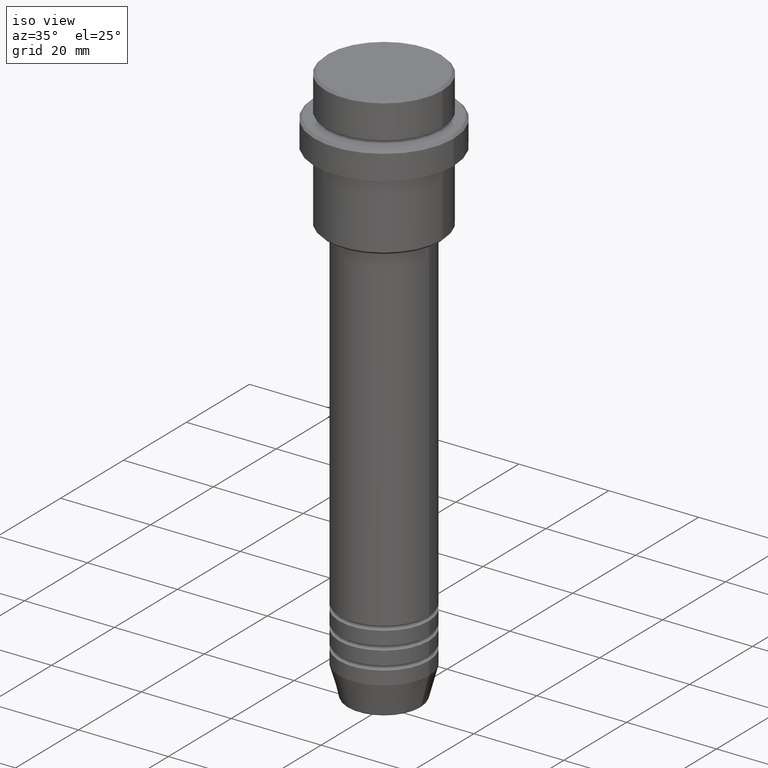
[diagram: clean part render]
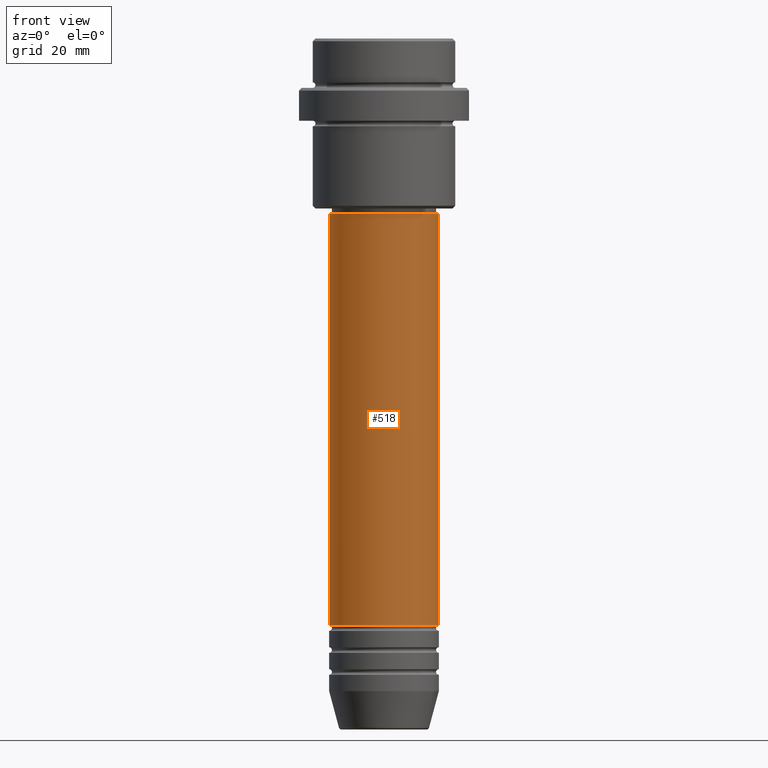
[diagram: tour spotlight — one face highlighted and labeled with its STEP entity id]
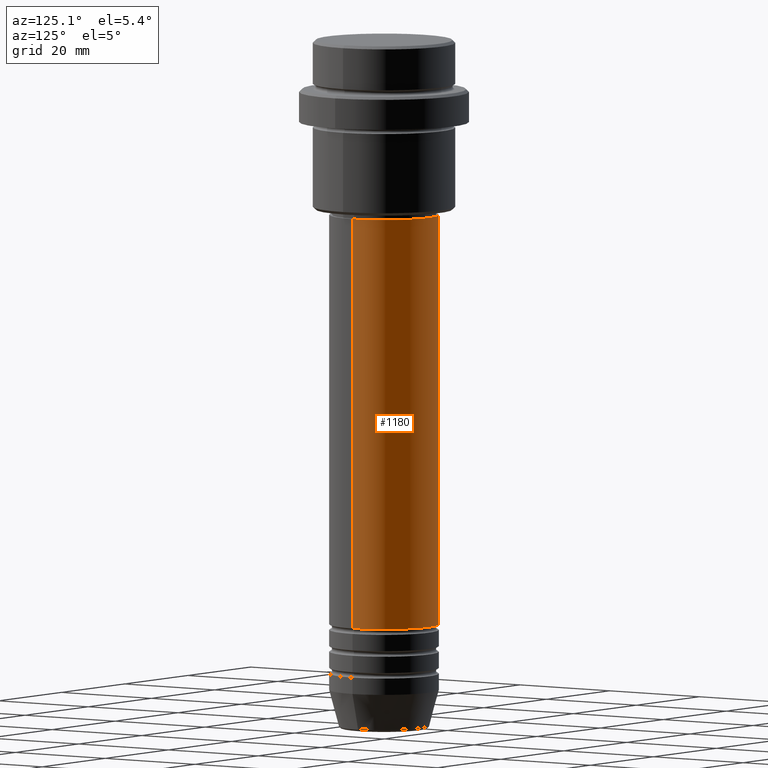
[diagram: tour spotlight — one face highlighted and labeled with its STEP entity id]
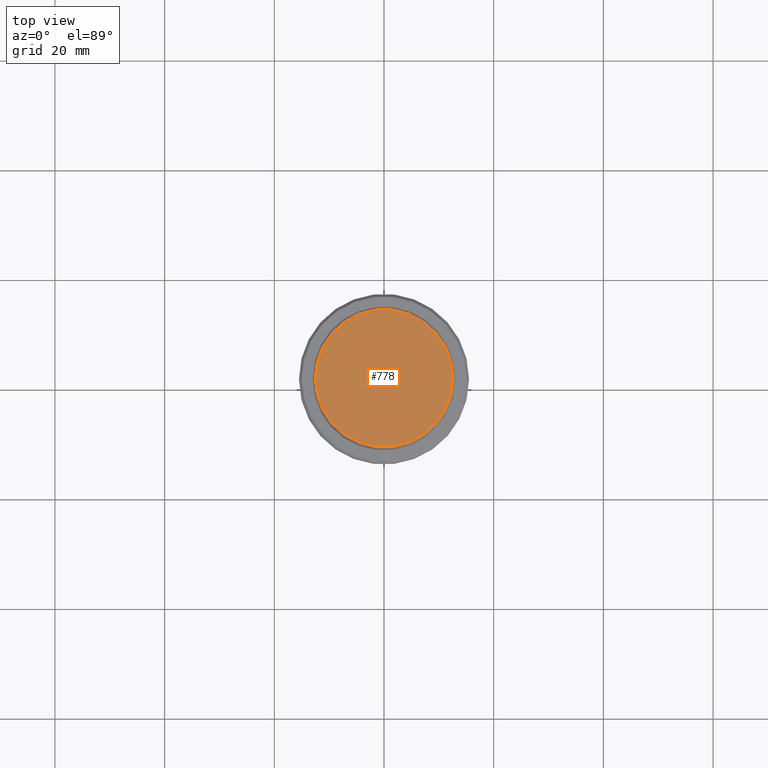
[diagram: tour spotlight — one face highlighted and labeled with its STEP entity id]
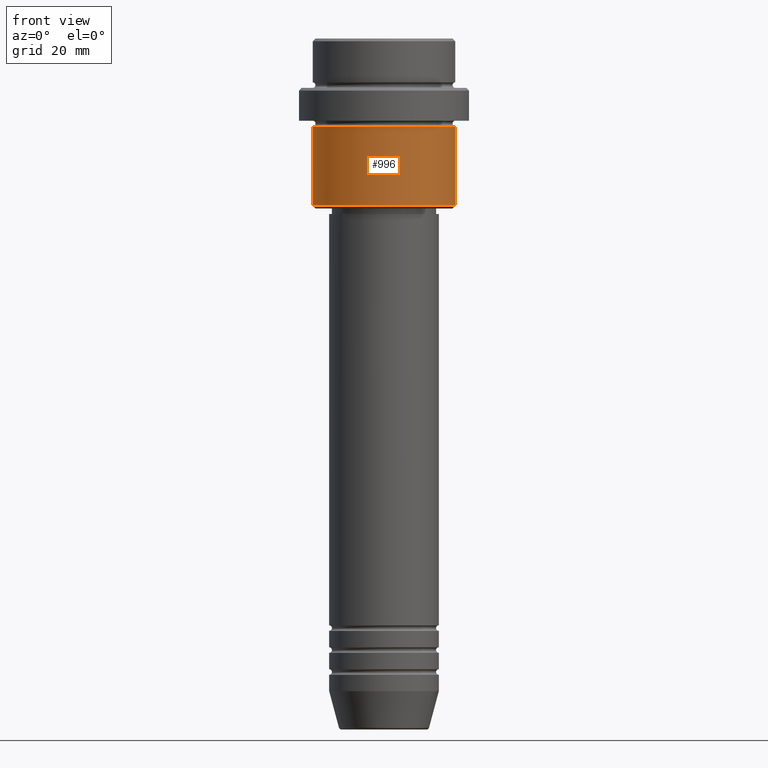
[diagram: tour spotlight — one face highlighted and labeled with its STEP entity id]
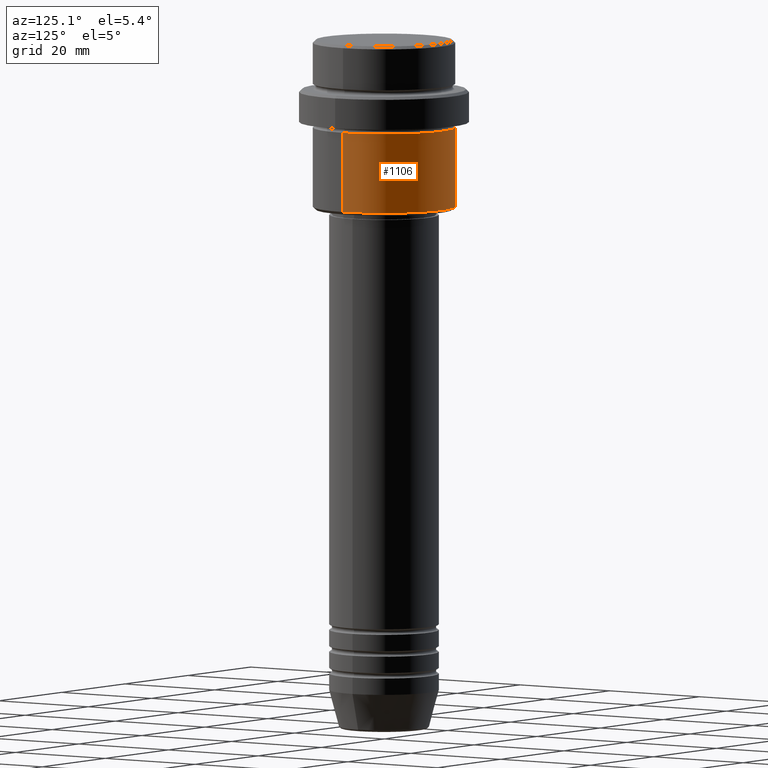
[diagram: tour spotlight — one face highlighted and labeled with its STEP entity id]
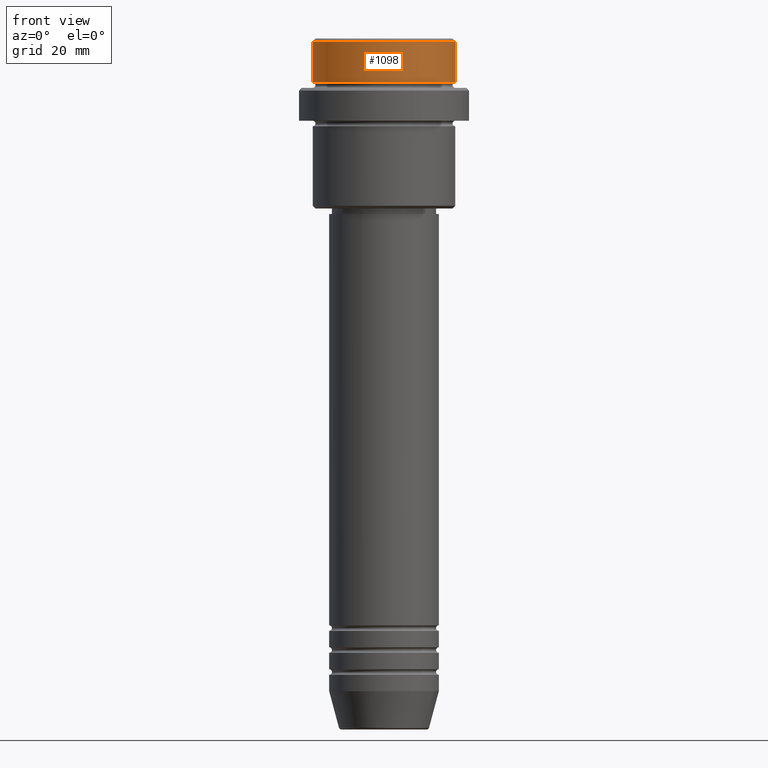
[diagram: tour spotlight — one face highlighted and labeled with its STEP entity id]
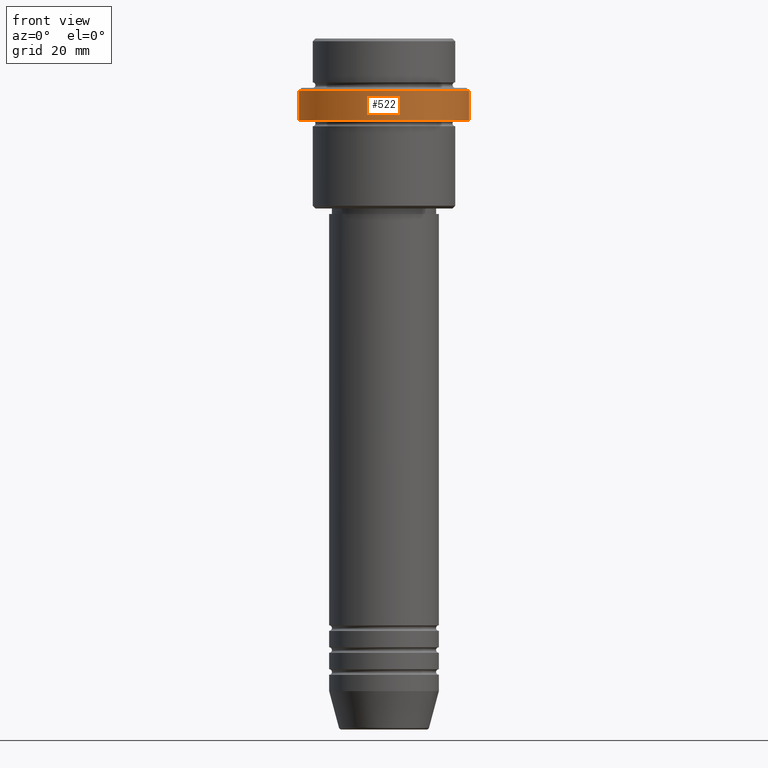
[diagram: tour spotlight — one face highlighted and labeled with its STEP entity id]
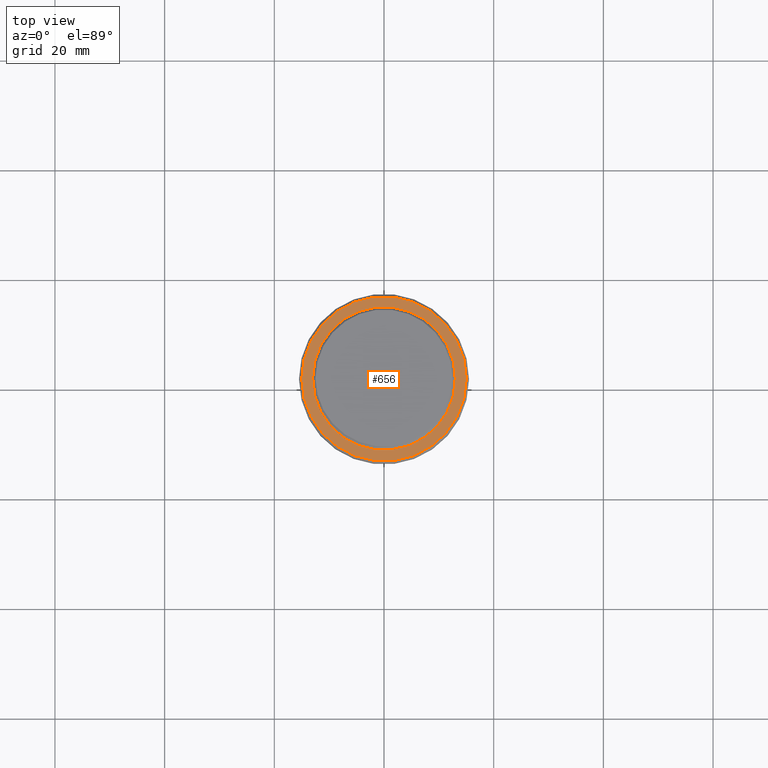
[diagram: tour spotlight — one face highlighted and labeled with its STEP entity id]
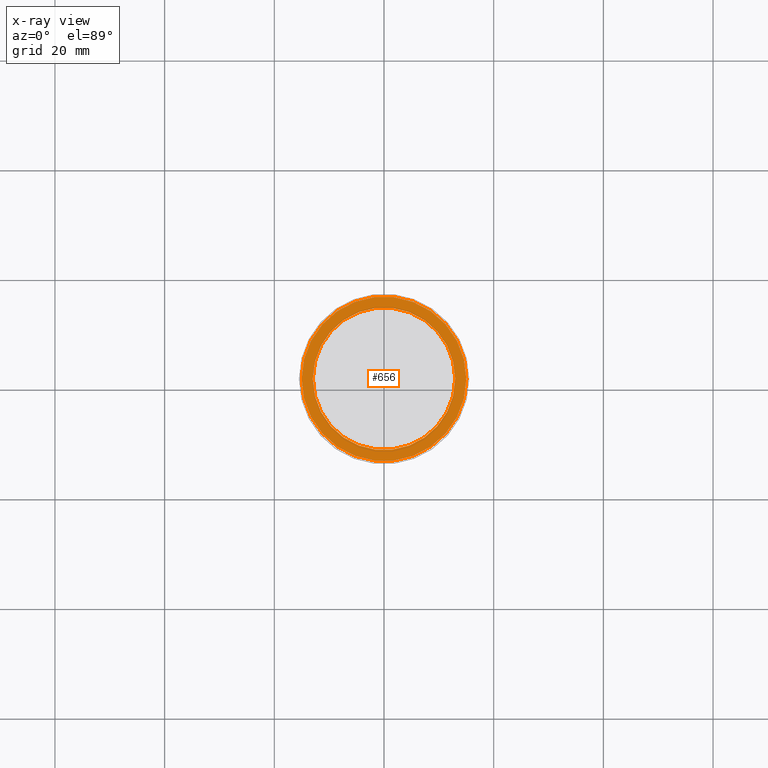
[diagram: x-ray of the same camera — body ghosted, this tour face saturated]
A machine part: a face-by-face anatomy tour. The part has 52 B-rep faces; the first image is the clean iso view, then the 8 largest visible faces are spotlighted one at a time (largest first), each with its STEP entity span.

Face 1 — front view, entity #518. In plain terms, the highlighted cylindrical surface (partial cylindrical patch) has radius 10 mm, axis along (-0, -0, 1).
Definition (entity closure, byte-faithful):
#25 = CARTESIAN_POINT ( 'NONE',  ( 0.000000000000000000, 0.000000000000000000, 0.000000000000000000 ) ) ;
#28 = LINE ( 'NONE', #1330, #1409 ) ;
#113 = AXIS2_PLACEMENT_3D ( 'NONE', #1246, #884, #248 ) ;
#136 = FACE_OUTER_BOUND ( 'NONE', #524, .T. ) ;
#144 = CARTESIAN_POINT ( 'NONE',  ( 0.000000000000000000, 0.000000000000000000, -31.99999999999997868 ) ) ;
#153 = DIRECTION ( 'NONE',  ( 1.000000000000000000, 0.000000000000000000, 0.000000000000000000 ) ) ;
#201 = EDGE_CURVE ( 'NONE', #1282, #1108, #28, .T. ) ;
#205 = EDGE_CURVE ( 'NONE', #1282, #832, #798, .T. ) ;
#215 = EDGE_CURVE ( 'NONE', #1108, #1320, #1091, .T. ) ;
#248 = DIRECTION ( 'NONE',  ( 1.000000000000000000, 0.000000000000000000, 0.000000000000000000 ) ) ;
#268 = CARTESIAN_POINT ( 'NONE',  ( 10.00000000000000178, 0.000000000000000000, 0.000000000000000000 ) ) ;
#343 = ORIENTED_EDGE ( 'NONE', *, *, #205, .T. ) ;
#359 = DIRECTION ( 'NONE',  ( 1.000000000000000000, 0.000000000000000000, 0.000000000000000000 ) ) ;
#391 = VECTOR ( 'NONE', #1034, 1000.000000000000000 ) ;
#400 = CARTESIAN_POINT ( 'NONE',  ( 10.00000000000000178, 0.000000000000000000, -31.99999999999997868 ) ) ;
#518 = ADVANCED_FACE ( 'NONE', ( #136 ), #1007, .T. ) ;
#524 = EDGE_LOOP ( 'NONE', ( #616, #343, #681, #953 ) ) ;
#573 = EDGE_CURVE ( 'NONE', #832, #1320, #1223, .T. ) ;
#580 = DIRECTION ( 'NONE',  ( -0.000000000000000000, -0.000000000000000000, 1.000000000000000000 ) ) ;
#616 = ORIENTED_EDGE ( 'NONE', *, *, #201, .F. ) ;
#625 = CARTESIAN_POINT ( 'NONE',  ( 10.00000000000000000, 0.000000000000000000, -106.9999999999998721 ) ) ;
#681 = ORIENTED_EDGE ( 'NONE', *, *, #573, .T. ) ;
#798 = CIRCLE ( 'NONE', #113, 10.00000000000000000 ) ;
#808 = DIRECTION ( 'NONE',  ( -0.000000000000000000, -0.000000000000000000, 1.000000000000000000 ) ) ;
#832 = VERTEX_POINT ( 'NONE', #625 ) ;
#868 = AXIS2_PLACEMENT_3D ( 'NONE', #144, #580, #153 ) ;
#884 = DIRECTION ( 'NONE',  ( -0.000000000000000000, -0.000000000000000000, 1.000000000000000000 ) ) ;
#893 = DIRECTION ( 'NONE',  ( -0.000000000000000000, -0.000000000000000000, 1.000000000000000000 ) ) ;
#953 = ORIENTED_EDGE ( 'NONE', *, *, #215, .F. ) ;
#959 = AXIS2_PLACEMENT_3D ( 'NONE', #25, #893, #359 ) ;
#1007 = CYLINDRICAL_SURFACE ( 'NONE', #959, 10.00000000000000178 ) ;
#1034 = DIRECTION ( 'NONE',  ( -0.000000000000000000, -0.000000000000000000, 1.000000000000000000 ) ) ;
#1091 = CIRCLE ( 'NONE', #868, 10.00000000000000178 ) ;
#1108 = VERTEX_POINT ( 'NONE', #1196 ) ;
#1155 = CARTESIAN_POINT ( 'NONE',  ( -10.00000000000000000, 1.224646799147353256E-15, -106.9999999999998721 ) ) ;
#1196 = CARTESIAN_POINT ( 'NONE',  ( -10.00000000000000178, 1.224646799147353454E-15, -31.99999999999997868 ) ) ;
#1223 = LINE ( 'NONE', #268, #391 ) ;
#1246 = CARTESIAN_POINT ( 'NONE',  ( 0.000000000000000000, 0.000000000000000000, -106.9999999999998721 ) ) ;
#1282 = VERTEX_POINT ( 'NONE', #1155 ) ;
#1320 = VERTEX_POINT ( 'NONE', #400 ) ;
#1330 = CARTESIAN_POINT ( 'NONE',  ( -10.00000000000000178, 1.224646799147353454E-15, 0.000000000000000000 ) ) ;
#1409 = VECTOR ( 'NONE', #808, 1000.000000000000000 ) ;

Face 2 — auxiliary view, entity #1180. In plain terms, the highlighted cylindrical surface (partial cylindrical patch) has radius 10 mm, axis along (-0, -0, 1).
Definition (entity closure, byte-faithful):
#7 = DIRECTION ( 'NONE',  ( 1.000000000000000000, 0.000000000000000000, 0.000000000000000000 ) ) ;
#28 = LINE ( 'NONE', #1330, #1409 ) ;
#133 = EDGE_LOOP ( 'NONE', ( #764, #381, #939, #929 ) ) ;
#201 = EDGE_CURVE ( 'NONE', #1282, #1108, #28, .T. ) ;
#268 = CARTESIAN_POINT ( 'NONE',  ( 10.00000000000000178, 0.000000000000000000, 0.000000000000000000 ) ) ;
#288 = DIRECTION ( 'NONE',  ( 1.000000000000000000, 0.000000000000000000, 0.000000000000000000 ) ) ;
#381 = ORIENTED_EDGE ( 'NONE', *, *, #201, .T. ) ;
#391 = VECTOR ( 'NONE', #1034, 1000.000000000000000 ) ;
#400 = CARTESIAN_POINT ( 'NONE',  ( 10.00000000000000178, 0.000000000000000000, -31.99999999999997868 ) ) ;
#501 = AXIS2_PLACEMENT_3D ( 'NONE', #565, #780, #288 ) ;
#565 = CARTESIAN_POINT ( 'NONE',  ( 0.000000000000000000, 0.000000000000000000, -31.99999999999997868 ) ) ;
#567 = CIRCLE ( 'NONE', #501, 10.00000000000000178 ) ;
#573 = EDGE_CURVE ( 'NONE', #832, #1320, #1223, .T. ) ;
#625 = CARTESIAN_POINT ( 'NONE',  ( 10.00000000000000000, 0.000000000000000000, -106.9999999999998721 ) ) ;
#764 = ORIENTED_EDGE ( 'NONE', *, *, #1048, .T. ) ;
#780 = DIRECTION ( 'NONE',  ( -0.000000000000000000, -0.000000000000000000, 1.000000000000000000 ) ) ;
#808 = DIRECTION ( 'NONE',  ( -0.000000000000000000, -0.000000000000000000, 1.000000000000000000 ) ) ;
#832 = VERTEX_POINT ( 'NONE', #625 ) ;
#840 = CYLINDRICAL_SURFACE ( 'NONE', #1096, 10.00000000000000178 ) ;
#843 = DIRECTION ( 'NONE',  ( -0.000000000000000000, -0.000000000000000000, 1.000000000000000000 ) ) ;
#855 = CIRCLE ( 'NONE', #1118, 10.00000000000000000 ) ;
#886 = EDGE_CURVE ( 'NONE', #1320, #1108, #567, .T. ) ;
#925 = FACE_OUTER_BOUND ( 'NONE', #133, .T. ) ;
#929 = ORIENTED_EDGE ( 'NONE', *, *, #573, .F. ) ;
#939 = ORIENTED_EDGE ( 'NONE', *, *, #886, .F. ) ;
#957 = DIRECTION ( 'NONE',  ( 1.000000000000000000, 0.000000000000000000, 0.000000000000000000 ) ) ;
#1034 = DIRECTION ( 'NONE',  ( -0.000000000000000000, -0.000000000000000000, 1.000000000000000000 ) ) ;
#1048 = EDGE_CURVE ( 'NONE', #832, #1282, #855, .T. ) ;
#1096 = AXIS2_PLACEMENT_3D ( 'NONE', #1277, #843, #7 ) ;
#1108 = VERTEX_POINT ( 'NONE', #1196 ) ;
#1118 = AXIS2_PLACEMENT_3D ( 'NONE', #1173, #1398, #957 ) ;
#1155 = CARTESIAN_POINT ( 'NONE',  ( -10.00000000000000000, 1.224646799147353256E-15, -106.9999999999998721 ) ) ;
#1173 = CARTESIAN_POINT ( 'NONE',  ( 0.000000000000000000, 0.000000000000000000, -106.9999999999998721 ) ) ;
#1180 = ADVANCED_FACE ( 'NONE', ( #925 ), #840, .T. ) ;
#1196 = CARTESIAN_POINT ( 'NONE',  ( -10.00000000000000178, 1.224646799147353454E-15, -31.99999999999997868 ) ) ;
#1223 = LINE ( 'NONE', #268, #391 ) ;
#1277 = CARTESIAN_POINT ( 'NONE',  ( 0.000000000000000000, 0.000000000000000000, 0.000000000000000000 ) ) ;
#1282 = VERTEX_POINT ( 'NONE', #1155 ) ;
#1320 = VERTEX_POINT ( 'NONE', #400 ) ;
#1330 = CARTESIAN_POINT ( 'NONE',  ( -10.00000000000000178, 1.224646799147353454E-15, 0.000000000000000000 ) ) ;
#1398 = DIRECTION ( 'NONE',  ( -0.000000000000000000, -0.000000000000000000, 1.000000000000000000 ) ) ;
#1409 = VECTOR ( 'NONE', #808, 1000.000000000000000 ) ;

Face 3 — top view, entity #778. In plain terms, the highlighted planar face has unit normal (0, -0, 1).
Definition (entity closure, byte-faithful):
#14 = EDGE_CURVE ( 'NONE', #1323, #121, #22, .T. ) ;
#22 = CIRCLE ( 'NONE', #1308, 12.50000000000001243 ) ;
#52 = PLANE ( 'NONE',  #1211 ) ;
#64 = CARTESIAN_POINT ( 'NONE',  ( 12.50000000000001243, 1.561424668912876097E-15, 0.000000000000000000 ) ) ;
#121 = VERTEX_POINT ( 'NONE', #1130 ) ;
#198 = ORIENTED_EDGE ( 'NONE', *, *, #14, .T. ) ;
#231 = AXIS2_PLACEMENT_3D ( 'NONE', #719, #918, #1261 ) ;
#383 = CARTESIAN_POINT ( 'NONE',  ( 0.000000000000000000, 0.000000000000000000, 0.000000000000000000 ) ) ;
#405 = EDGE_LOOP ( 'NONE', ( #486, #198 ) ) ;
#416 = CIRCLE ( 'NONE', #231, 12.50000000000001243 ) ;
#479 = DIRECTION ( 'NONE',  ( 0.000000000000000000, -0.000000000000000000, 1.000000000000000000 ) ) ;
#486 = ORIENTED_EDGE ( 'NONE', *, *, #629, .T. ) ;
#629 = EDGE_CURVE ( 'NONE', #121, #1323, #416, .T. ) ;
#719 = CARTESIAN_POINT ( 'NONE',  ( 0.000000000000000000, 0.000000000000000000, 0.000000000000000000 ) ) ;
#729 = CARTESIAN_POINT ( 'NONE',  ( 0.000000000000000000, 0.000000000000000000, 0.000000000000000000 ) ) ;
#778 = ADVANCED_FACE ( 'NONE', ( #1053 ), #52, .T. ) ;
#918 = DIRECTION ( 'NONE',  ( -0.000000000000000000, -0.000000000000000000, 1.000000000000000000 ) ) ;
#1053 = FACE_OUTER_BOUND ( 'NONE', #405, .T. ) ;
#1084 = DIRECTION ( 'NONE',  ( 1.000000000000000000, 0.000000000000000000, 0.000000000000000000 ) ) ;
#1127 = DIRECTION ( 'NONE',  ( 1.000000000000000000, 0.000000000000000000, 0.000000000000000000 ) ) ;
#1130 = CARTESIAN_POINT ( 'NONE',  ( -12.50000000000001243, 0.000000000000000000, 0.000000000000000000 ) ) ;
#1167 = DIRECTION ( 'NONE',  ( -0.000000000000000000, -0.000000000000000000, 1.000000000000000000 ) ) ;
#1211 = AXIS2_PLACEMENT_3D ( 'NONE', #383, #479, #1127 ) ;
#1261 = DIRECTION ( 'NONE',  ( 1.000000000000000000, 0.000000000000000000, 0.000000000000000000 ) ) ;
#1308 = AXIS2_PLACEMENT_3D ( 'NONE', #729, #1167, #1084 ) ;
#1323 = VERTEX_POINT ( 'NONE', #64 ) ;

Face 4 — front view, entity #996. In plain terms, the highlighted cylindrical surface (partial cylindrical patch) has radius 13 mm, axis along (-0, -0, 1).
Definition (entity closure, byte-faithful):
#85 = DIRECTION ( 'NONE',  ( -0.000000000000000000, -0.000000000000000000, 1.000000000000000000 ) ) ;
#128 = CYLINDRICAL_SURFACE ( 'NONE', #627, 13.00000000000000000 ) ;
#135 = DIRECTION ( 'NONE',  ( -0.000000000000000000, -0.000000000000000000, 1.000000000000000000 ) ) ;
#173 = CARTESIAN_POINT ( 'NONE',  ( 0.000000000000000000, 0.000000000000000000, -30.50000000000001776 ) ) ;
#192 = CARTESIAN_POINT ( 'NONE',  ( 13.00000000000000000, 0.000000000000000000, 0.000000000000000000 ) ) ;
#241 = EDGE_CURVE ( 'NONE', #1272, #395, #478, .T. ) ;
#392 = VERTEX_POINT ( 'NONE', #611 ) ;
#395 = VERTEX_POINT ( 'NONE', #880 ) ;
#478 = LINE ( 'NONE', #910, #654 ) ;
#481 = LINE ( 'NONE', #192, #1413 ) ;
#532 = EDGE_CURVE ( 'NONE', #1272, #392, #1286, .T. ) ;
#534 = CARTESIAN_POINT ( 'NONE',  ( 0.000000000000000000, 0.000000000000000000, 0.000000000000000000 ) ) ;
#541 = AXIS2_PLACEMENT_3D ( 'NONE', #173, #85, #722 ) ;
#557 = DIRECTION ( 'NONE',  ( 1.000000000000000000, 0.000000000000000000, 0.000000000000000000 ) ) ;
#611 = CARTESIAN_POINT ( 'NONE',  ( 13.00000000000000000, 0.000000000000000000, -30.50000000000001776 ) ) ;
#624 = CIRCLE ( 'NONE', #1055, 13.00000000000000000 ) ;
#627 = AXIS2_PLACEMENT_3D ( 'NONE', #534, #984, #557 ) ;
#646 = CARTESIAN_POINT ( 'NONE',  ( 13.00000000000000000, 0.000000000000000000, -16.00000000000000000 ) ) ;
#654 = VECTOR ( 'NONE', #1351, 1000.000000000000000 ) ;
#707 = ORIENTED_EDGE ( 'NONE', *, *, #241, .F. ) ;
#722 = DIRECTION ( 'NONE',  ( -1.000000000000000000, 0.000000000000000000, 0.000000000000000000 ) ) ;
#787 = EDGE_CURVE ( 'NONE', #395, #1023, #624, .T. ) ;
#880 = CARTESIAN_POINT ( 'NONE',  ( -13.00000000000000000, 1.592040838891559095E-15, -16.00000000000000000 ) ) ;
#892 = DIRECTION ( 'NONE',  ( 1.000000000000000000, 0.000000000000000000, 0.000000000000000000 ) ) ;
#910 = CARTESIAN_POINT ( 'NONE',  ( -13.00000000000000000, 1.592040838891559095E-15, 0.000000000000000000 ) ) ;
#913 = DIRECTION ( 'NONE',  ( -0.000000000000000000, -0.000000000000000000, 1.000000000000000000 ) ) ;
#919 = EDGE_CURVE ( 'NONE', #392, #1023, #481, .T. ) ;
#975 = ORIENTED_EDGE ( 'NONE', *, *, #532, .T. ) ;
#984 = DIRECTION ( 'NONE',  ( -0.000000000000000000, -0.000000000000000000, 1.000000000000000000 ) ) ;
#996 = ADVANCED_FACE ( 'NONE', ( #1213 ), #128, .T. ) ;
#1023 = VERTEX_POINT ( 'NONE', #646 ) ;
#1055 = AXIS2_PLACEMENT_3D ( 'NONE', #1358, #135, #892 ) ;
#1213 = FACE_OUTER_BOUND ( 'NONE', #1375, .T. ) ;
#1262 = ORIENTED_EDGE ( 'NONE', *, *, #787, .F. ) ;
#1272 = VERTEX_POINT ( 'NONE', #1402 ) ;
#1286 = CIRCLE ( 'NONE', #541, 13.00000000000000000 ) ;
#1351 = DIRECTION ( 'NONE',  ( -0.000000000000000000, -0.000000000000000000, 1.000000000000000000 ) ) ;
#1358 = CARTESIAN_POINT ( 'NONE',  ( 0.000000000000000000, 0.000000000000000000, -16.00000000000000000 ) ) ;
#1375 = EDGE_LOOP ( 'NONE', ( #707, #975, #1376, #1262 ) ) ;
#1376 = ORIENTED_EDGE ( 'NONE', *, *, #919, .T. ) ;
#1402 = CARTESIAN_POINT ( 'NONE',  ( -13.00000000000000000, 1.592040838891559095E-15, -30.50000000000001776 ) ) ;
#1413 = VECTOR ( 'NONE', #913, 1000.000000000000000 ) ;

Face 5 — auxiliary view, entity #1106. In plain terms, the highlighted cylindrical surface (partial cylindrical patch) has radius 13 mm, axis along (-0, -0, 1).
Definition (entity closure, byte-faithful):
#37 = DIRECTION ( 'NONE',  ( -1.000000000000000000, 0.000000000000000000, 0.000000000000000000 ) ) ;
#75 = DIRECTION ( 'NONE',  ( -0.000000000000000000, -0.000000000000000000, 1.000000000000000000 ) ) ;
#139 = CIRCLE ( 'NONE', #777, 13.00000000000000000 ) ;
#165 = CARTESIAN_POINT ( 'NONE',  ( 0.000000000000000000, 0.000000000000000000, -16.00000000000000000 ) ) ;
#192 = CARTESIAN_POINT ( 'NONE',  ( 13.00000000000000000, 0.000000000000000000, 0.000000000000000000 ) ) ;
#199 = DIRECTION ( 'NONE',  ( 1.000000000000000000, 0.000000000000000000, 0.000000000000000000 ) ) ;
#225 = DIRECTION ( 'NONE',  ( -0.000000000000000000, -0.000000000000000000, 1.000000000000000000 ) ) ;
#241 = EDGE_CURVE ( 'NONE', #1272, #395, #478, .T. ) ;
#351 = ORIENTED_EDGE ( 'NONE', *, *, #919, .F. ) ;
#362 = ORIENTED_EDGE ( 'NONE', *, *, #461, .T. ) ;
#363 = DIRECTION ( 'NONE',  ( -0.000000000000000000, -0.000000000000000000, 1.000000000000000000 ) ) ;
#392 = VERTEX_POINT ( 'NONE', #611 ) ;
#395 = VERTEX_POINT ( 'NONE', #880 ) ;
#461 = EDGE_CURVE ( 'NONE', #392, #1272, #885, .T. ) ;
#478 = LINE ( 'NONE', #910, #654 ) ;
#481 = LINE ( 'NONE', #192, #1413 ) ;
#516 = ORIENTED_EDGE ( 'NONE', *, *, #241, .T. ) ;
#582 = CARTESIAN_POINT ( 'NONE',  ( 0.000000000000000000, 0.000000000000000000, -30.50000000000001776 ) ) ;
#611 = CARTESIAN_POINT ( 'NONE',  ( 13.00000000000000000, 0.000000000000000000, -30.50000000000001776 ) ) ;
#646 = CARTESIAN_POINT ( 'NONE',  ( 13.00000000000000000, 0.000000000000000000, -16.00000000000000000 ) ) ;
#654 = VECTOR ( 'NONE', #1351, 1000.000000000000000 ) ;
#763 = CARTESIAN_POINT ( 'NONE',  ( 0.000000000000000000, 0.000000000000000000, 0.000000000000000000 ) ) ;
#777 = AXIS2_PLACEMENT_3D ( 'NONE', #165, #75, #837 ) ;
#837 = DIRECTION ( 'NONE',  ( 1.000000000000000000, 0.000000000000000000, 0.000000000000000000 ) ) ;
#848 = EDGE_LOOP ( 'NONE', ( #362, #516, #1105, #351 ) ) ;
#880 = CARTESIAN_POINT ( 'NONE',  ( -13.00000000000000000, 1.592040838891559095E-15, -16.00000000000000000 ) ) ;
#885 = CIRCLE ( 'NONE', #1263, 13.00000000000000000 ) ;
#898 = EDGE_CURVE ( 'NONE', #1023, #395, #139, .T. ) ;
#910 = CARTESIAN_POINT ( 'NONE',  ( -13.00000000000000000, 1.592040838891559095E-15, 0.000000000000000000 ) ) ;
#913 = DIRECTION ( 'NONE',  ( -0.000000000000000000, -0.000000000000000000, 1.000000000000000000 ) ) ;
#919 = EDGE_CURVE ( 'NONE', #392, #1023, #481, .T. ) ;
#1008 = AXIS2_PLACEMENT_3D ( 'NONE', #763, #225, #199 ) ;
#1023 = VERTEX_POINT ( 'NONE', #646 ) ;
#1105 = ORIENTED_EDGE ( 'NONE', *, *, #898, .F. ) ;
#1106 = ADVANCED_FACE ( 'NONE', ( #1269 ), #1148, .T. ) ;
#1148 = CYLINDRICAL_SURFACE ( 'NONE', #1008, 13.00000000000000000 ) ;
#1263 = AXIS2_PLACEMENT_3D ( 'NONE', #582, #363, #37 ) ;
#1269 = FACE_OUTER_BOUND ( 'NONE', #848, .T. ) ;
#1272 = VERTEX_POINT ( 'NONE', #1402 ) ;
#1351 = DIRECTION ( 'NONE',  ( -0.000000000000000000, -0.000000000000000000, 1.000000000000000000 ) ) ;
#1402 = CARTESIAN_POINT ( 'NONE',  ( -13.00000000000000000, 1.592040838891559095E-15, -30.50000000000001776 ) ) ;
#1413 = VECTOR ( 'NONE', #913, 1000.000000000000000 ) ;

Face 6 — front view, entity #1098. In plain terms, the highlighted cylindrical surface (partial cylindrical patch) has radius 13 mm, axis along (-0, -0, 1).
Definition (entity closure, byte-faithful):
#5 = DIRECTION ( 'NONE',  ( 1.000000000000000000, 0.000000000000000000, 0.000000000000000000 ) ) ;
#13 = DIRECTION ( 'NONE',  ( -0.000000000000000000, -0.000000000000000000, 1.000000000000000000 ) ) ;
#48 = CIRCLE ( 'NONE', #989, 12.99999999999999822 ) ;
#55 = DIRECTION ( 'NONE',  ( 1.000000000000000000, 0.000000000000000000, 0.000000000000000000 ) ) ;
#77 = VECTOR ( 'NONE', #13, 1000.000000000000000 ) ;
#148 = EDGE_CURVE ( 'NONE', #751, #612, #1233, .T. ) ;
#277 = DIRECTION ( 'NONE',  ( -0.000000000000000000, -0.000000000000000000, 1.000000000000000000 ) ) ;
#324 = AXIS2_PLACEMENT_3D ( 'NONE', #1175, #958, #55 ) ;
#348 = VECTOR ( 'NONE', #277, 1000.000000000000000 ) ;
#389 = DIRECTION ( 'NONE',  ( -0.000000000000000000, -0.000000000000000000, 1.000000000000000000 ) ) ;
#409 = CARTESIAN_POINT ( 'NONE',  ( -12.99999999999999822, 1.592040838891558898E-15, -7.999999999999998224 ) ) ;
#471 = CARTESIAN_POINT ( 'NONE',  ( 12.99999999999999822, 0.000000000000000000, -7.999999999999998224 ) ) ;
#584 = FACE_OUTER_BOUND ( 'NONE', #715, .T. ) ;
#612 = VERTEX_POINT ( 'NONE', #471 ) ;
#633 = EDGE_CURVE ( 'NONE', #612, #1359, #1364, .T. ) ;
#692 = ORIENTED_EDGE ( 'NONE', *, *, #633, .T. ) ;
#715 = EDGE_LOOP ( 'NONE', ( #1158, #876, #692, #1275 ) ) ;
#734 = CARTESIAN_POINT ( 'NONE',  ( 12.99999999999999822, 0.000000000000000000, 0.000000000000000000 ) ) ;
#751 = VERTEX_POINT ( 'NONE', #409 ) ;
#784 = LINE ( 'NONE', #999, #77 ) ;
#805 = DIRECTION ( 'NONE',  ( 0.000000000000000000, 0.000000000000000000, -1.000000000000000000 ) ) ;
#817 = VERTEX_POINT ( 'NONE', #1005 ) ;
#827 = DIRECTION ( 'NONE',  ( 1.000000000000000000, 0.000000000000000000, 0.000000000000000000 ) ) ;
#876 = ORIENTED_EDGE ( 'NONE', *, *, #148, .T. ) ;
#924 = CARTESIAN_POINT ( 'NONE',  ( 0.000000000000000000, 0.000000000000000000, 0.000000000000000000 ) ) ;
#958 = DIRECTION ( 'NONE',  ( -0.000000000000000000, -0.000000000000000000, 1.000000000000000000 ) ) ;
#989 = AXIS2_PLACEMENT_3D ( 'NONE', #1011, #805, #5 ) ;
#999 = CARTESIAN_POINT ( 'NONE',  ( -12.99999999999999822, 1.592040838891558898E-15, 0.000000000000000000 ) ) ;
#1005 = CARTESIAN_POINT ( 'NONE',  ( -12.99999999999999822, 1.592040838891558898E-15, -0.4999999999999900080 ) ) ;
#1011 = CARTESIAN_POINT ( 'NONE',  ( 0.000000000000000000, 0.000000000000000000, -0.4999999999999900080 ) ) ;
#1012 = EDGE_CURVE ( 'NONE', #751, #817, #784, .T. ) ;
#1098 = ADVANCED_FACE ( 'NONE', ( #584 ), #1142, .T. ) ;
#1138 = AXIS2_PLACEMENT_3D ( 'NONE', #924, #389, #827 ) ;
#1142 = CYLINDRICAL_SURFACE ( 'NONE', #1138, 12.99999999999999822 ) ;
#1158 = ORIENTED_EDGE ( 'NONE', *, *, #1012, .F. ) ;
#1175 = CARTESIAN_POINT ( 'NONE',  ( 0.000000000000000000, 0.000000000000000000, -7.999999999999998224 ) ) ;
#1212 = CARTESIAN_POINT ( 'NONE',  ( 12.99999999999999822, 0.000000000000000000, -0.4999999999999900080 ) ) ;
#1233 = CIRCLE ( 'NONE', #324, 12.99999999999999822 ) ;
#1275 = ORIENTED_EDGE ( 'NONE', *, *, #1349, .T. ) ;
#1349 = EDGE_CURVE ( 'NONE', #1359, #817, #48, .T. ) ;
#1359 = VERTEX_POINT ( 'NONE', #1212 ) ;
#1364 = LINE ( 'NONE', #734, #348 ) ;

Face 7 — front view, entity #522. In plain terms, the highlighted cylindrical surface (partial cylindrical patch) has radius 15.5 mm, axis along (-0, -0, 1).
Definition (entity closure, byte-faithful):
#54 = CARTESIAN_POINT ( 'NONE',  ( 15.50000000000000000, 0.000000000000000000, -9.499999999999985789 ) ) ;
#105 = CARTESIAN_POINT ( 'NONE',  ( -15.50000000000000000, 1.898202538678397557E-15, 0.000000000000000000 ) ) ;
#147 = VERTEX_POINT ( 'NONE', #950 ) ;
#212 = VECTOR ( 'NONE', #218, 1000.000000000000000 ) ;
#218 = DIRECTION ( 'NONE',  ( -0.000000000000000000, -0.000000000000000000, 1.000000000000000000 ) ) ;
#249 = CYLINDRICAL_SURFACE ( 'NONE', #589, 15.50000000000000000 ) ;
#275 = CARTESIAN_POINT ( 'NONE',  ( 15.50000000000000000, 0.000000000000000000, 0.000000000000000000 ) ) ;
#314 = CARTESIAN_POINT ( 'NONE',  ( 15.50000000000000000, 0.000000000000000000, -15.00000000000000178 ) ) ;
#467 = DIRECTION ( 'NONE',  ( 1.000000000000000000, 0.000000000000000000, 0.000000000000000000 ) ) ;
#470 = LINE ( 'NONE', #275, #1029 ) ;
#485 = DIRECTION ( 'NONE',  ( 0.000000000000000000, 0.000000000000000000, -1.000000000000000000 ) ) ;
#494 = ORIENTED_EDGE ( 'NONE', *, *, #814, .T. ) ;
#522 = ADVANCED_FACE ( 'NONE', ( #1229 ), #249, .T. ) ;
#540 = DIRECTION ( 'NONE',  ( -0.000000000000000000, -0.000000000000000000, 1.000000000000000000 ) ) ;
#549 = VERTEX_POINT ( 'NONE', #1302 ) ;
#589 = AXIS2_PLACEMENT_3D ( 'NONE', #1336, #676, #467 ) ;
#645 = CARTESIAN_POINT ( 'NONE',  ( 0.000000000000000000, 0.000000000000000000, -15.00000000000000178 ) ) ;
#676 = DIRECTION ( 'NONE',  ( -0.000000000000000000, -0.000000000000000000, 1.000000000000000000 ) ) ;
#686 = ORIENTED_EDGE ( 'NONE', *, *, #1297, .T. ) ;
#760 = VERTEX_POINT ( 'NONE', #54 ) ;
#814 = EDGE_CURVE ( 'NONE', #760, #549, #1305, .T. ) ;
#836 = ORIENTED_EDGE ( 'NONE', *, *, #1129, .T. ) ;
#856 = AXIS2_PLACEMENT_3D ( 'NONE', #645, #540, #1083 ) ;
#859 = VERTEX_POINT ( 'NONE', #314 ) ;
#864 = EDGE_LOOP ( 'NONE', ( #1202, #686, #836, #494 ) ) ;
#901 = DIRECTION ( 'NONE',  ( -0.000000000000000000, -0.000000000000000000, 1.000000000000000000 ) ) ;
#950 = CARTESIAN_POINT ( 'NONE',  ( -15.50000000000000000, 1.898202538678397557E-15, -15.00000000000000178 ) ) ;
#1029 = VECTOR ( 'NONE', #901, 1000.000000000000000 ) ;
#1073 = AXIS2_PLACEMENT_3D ( 'NONE', #1352, #485, #1236 ) ;
#1083 = DIRECTION ( 'NONE',  ( 1.000000000000000000, 0.000000000000000000, 0.000000000000000000 ) ) ;
#1129 = EDGE_CURVE ( 'NONE', #859, #760, #470, .T. ) ;
#1194 = LINE ( 'NONE', #105, #212 ) ;
#1202 = ORIENTED_EDGE ( 'NONE', *, *, #1294, .F. ) ;
#1229 = FACE_OUTER_BOUND ( 'NONE', #864, .T. ) ;
#1236 = DIRECTION ( 'NONE',  ( 1.000000000000000000, 0.000000000000000000, 0.000000000000000000 ) ) ;
#1294 = EDGE_CURVE ( 'NONE', #147, #549, #1194, .T. ) ;
#1297 = EDGE_CURVE ( 'NONE', #147, #859, #1394, .T. ) ;
#1302 = CARTESIAN_POINT ( 'NONE',  ( -15.50000000000000000, 1.898202538678397557E-15, -9.499999999999985789 ) ) ;
#1305 = CIRCLE ( 'NONE', #1073, 15.50000000000000000 ) ;
#1336 = CARTESIAN_POINT ( 'NONE',  ( 0.000000000000000000, 0.000000000000000000, 0.000000000000000000 ) ) ;
#1352 = CARTESIAN_POINT ( 'NONE',  ( 0.000000000000000000, 0.000000000000000000, -9.499999999999985789 ) ) ;
#1394 = CIRCLE ( 'NONE', #856, 15.50000000000000000 ) ;

Face 8 — top view, entity #656. An x-ray twin of the same camera follows (body ghosted, this face saturated) — the face is partly hidden behind the body. In plain terms, the highlighted planar face has unit normal (0, -0, 1).
Definition (entity closure, byte-faithful):
#23 = EDGE_CURVE ( 'NONE', #554, #184, #980, .T. ) ;
#67 = ORIENTED_EDGE ( 'NONE', *, *, #347, .T. ) ;
#76 = AXIS2_PLACEMENT_3D ( 'NONE', #187, #514, #1388 ) ;
#87 = DIRECTION ( 'NONE',  ( 0.000000000000000000, 0.000000000000000000, -1.000000000000000000 ) ) ;
#89 = PLANE ( 'NONE',  #76 ) ;
#184 = VERTEX_POINT ( 'NONE', #323 ) ;
#187 = CARTESIAN_POINT ( 'NONE',  ( 0.000000000000000000, 12.49999999999999289, -9.000000000000001776 ) ) ;
#286 = VERTEX_POINT ( 'NONE', #1363 ) ;
#296 = EDGE_LOOP ( 'NONE', ( #1288, #1045 ) ) ;
#318 = EDGE_CURVE ( 'NONE', #286, #744, #1119, .T. ) ;
#319 = DIRECTION ( 'NONE',  ( 1.000000000000000000, 0.000000000000000000, 0.000000000000000000 ) ) ;
#323 = CARTESIAN_POINT ( 'NONE',  ( 12.99999999999999467, 0.000000000000000000, -9.000000000000001776 ) ) ;
#338 = CARTESIAN_POINT ( 'NONE',  ( 0.000000000000000000, 0.000000000000000000, -9.000000000000001776 ) ) ;
#347 = EDGE_CURVE ( 'NONE', #184, #554, #621, .T. ) ;
#406 = FACE_OUTER_BOUND ( 'NONE', #296, .T. ) ;
#412 = EDGE_LOOP ( 'NONE', ( #67, #1170 ) ) ;
#425 = CARTESIAN_POINT ( 'NONE',  ( 0.000000000000000000, 0.000000000000000000, -9.000000000000001776 ) ) ;
#447 = DIRECTION ( 'NONE',  ( 1.000000000000000000, 0.000000000000000000, 0.000000000000000000 ) ) ;
#507 = AXIS2_PLACEMENT_3D ( 'NONE', #981, #1415, #1182 ) ;
#514 = DIRECTION ( 'NONE',  ( 0.000000000000000000, -0.000000000000000000, 1.000000000000000000 ) ) ;
#523 = CARTESIAN_POINT ( 'NONE',  ( 0.000000000000000000, 0.000000000000000000, -9.000000000000001776 ) ) ;
#554 = VERTEX_POINT ( 'NONE', #1017 ) ;
#609 = CARTESIAN_POINT ( 'NONE',  ( -15.00000000000002665, 0.000000000000000000, -9.000000000000001776 ) ) ;
#617 = DIRECTION ( 'NONE',  ( 1.000000000000000000, 0.000000000000000000, 0.000000000000000000 ) ) ;
#621 = CIRCLE ( 'NONE', #1209, 12.99999999999999467 ) ;
#656 = ADVANCED_FACE ( 'NONE', ( #406, #1159 ), #89, .T. ) ;
#744 = VERTEX_POINT ( 'NONE', #609 ) ;
#830 = AXIS2_PLACEMENT_3D ( 'NONE', #523, #87, #319 ) ;
#873 = CIRCLE ( 'NONE', #1307, 15.00000000000002665 ) ;
#980 = CIRCLE ( 'NONE', #830, 12.99999999999999467 ) ;
#981 = CARTESIAN_POINT ( 'NONE',  ( 0.000000000000000000, 0.000000000000000000, -9.000000000000001776 ) ) ;
#991 = DIRECTION ( 'NONE',  ( 0.000000000000000000, 0.000000000000000000, -1.000000000000000000 ) ) ;
#1017 = CARTESIAN_POINT ( 'NONE',  ( -12.99999999999999467, 1.592040838891558504E-15, -9.000000000000001776 ) ) ;
#1045 = ORIENTED_EDGE ( 'NONE', *, *, #318, .T. ) ;
#1066 = EDGE_CURVE ( 'NONE', #744, #286, #873, .T. ) ;
#1119 = CIRCLE ( 'NONE', #507, 15.00000000000002665 ) ;
#1159 = FACE_BOUND ( 'NONE', #412, .T. ) ;
#1170 = ORIENTED_EDGE ( 'NONE', *, *, #23, .T. ) ;
#1182 = DIRECTION ( 'NONE',  ( 1.000000000000000000, 0.000000000000000000, 0.000000000000000000 ) ) ;
#1184 = DIRECTION ( 'NONE',  ( -0.000000000000000000, -0.000000000000000000, 1.000000000000000000 ) ) ;
#1209 = AXIS2_PLACEMENT_3D ( 'NONE', #338, #991, #447 ) ;
#1288 = ORIENTED_EDGE ( 'NONE', *, *, #1066, .T. ) ;
#1307 = AXIS2_PLACEMENT_3D ( 'NONE', #425, #1184, #617 ) ;
#1363 = CARTESIAN_POINT ( 'NONE',  ( 15.00000000000002665, 1.867586368699715348E-15, -9.000000000000001776 ) ) ;
#1388 = DIRECTION ( 'NONE',  ( 1.000000000000000000, 0.000000000000000000, 0.000000000000000000 ) ) ;
#1415 = DIRECTION ( 'NONE',  ( -0.000000000000000000, -0.000000000000000000, 1.000000000000000000 ) ) ;